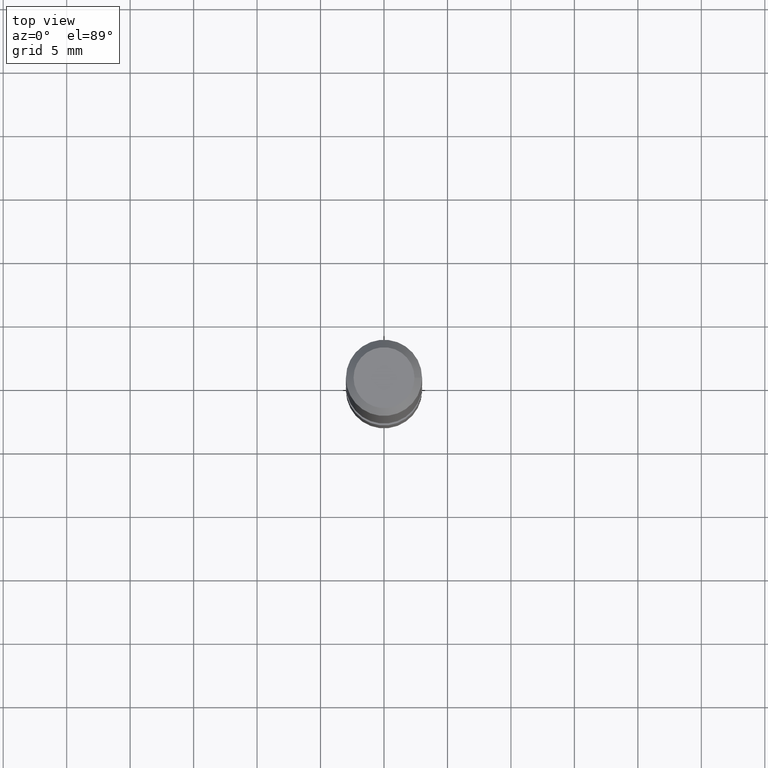
[diagram: clean part render]
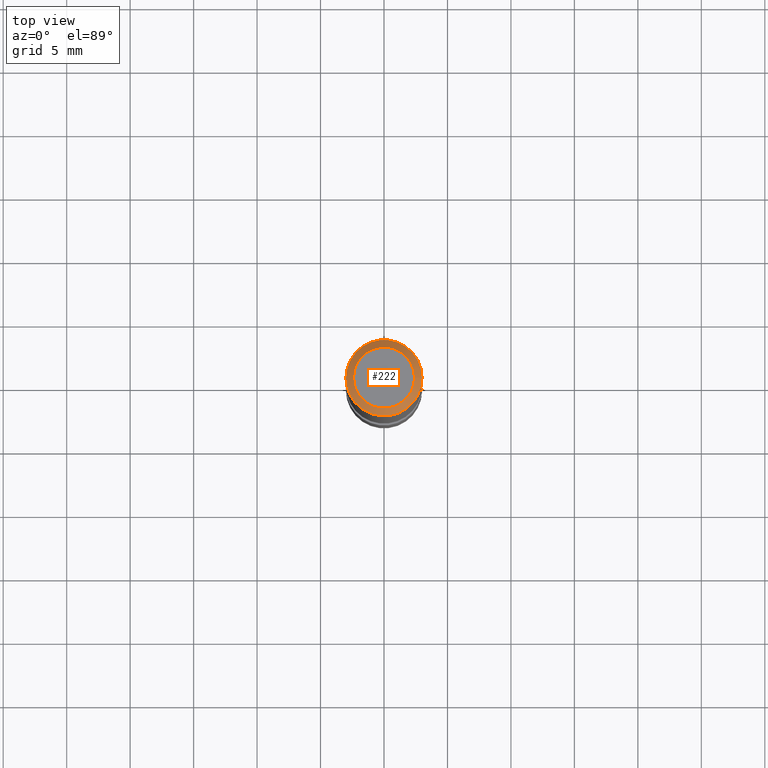
[diagram: same view with one face highlighted and labeled with its STEP entity id]
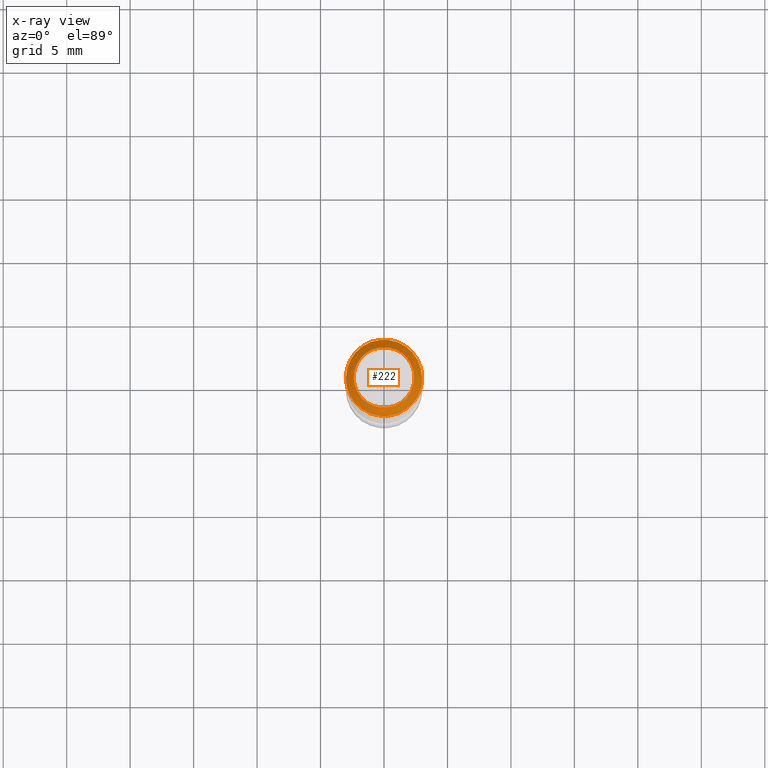
[diagram: x-ray of the same camera — body ghosted, the highlighted face saturated]
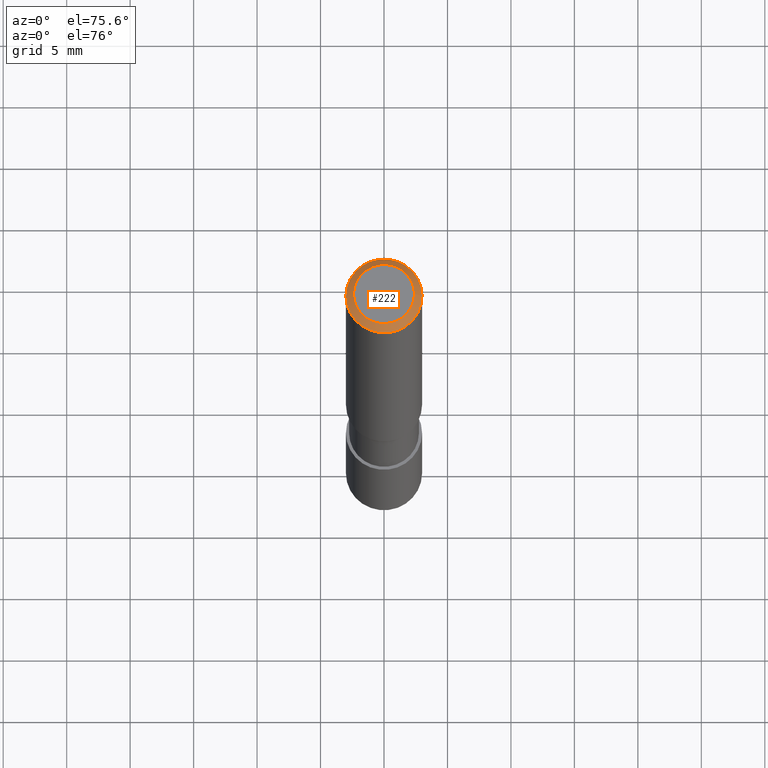
[diagram: same view with one face highlighted and labeled with its STEP entity id]
A machine part, top view. The second image highlights one B-rep face of the part: STEP entity #222.
The next image is the same camera in x-ray: the body ghosted, the highlighted face saturated — about 0% of this face is hidden behind the body in this view.
A second angle (auxiliary view) of the same face is appended — the face is thin or edge-on in the first view.
In plain terms, the highlighted conical surface has half-angle 45 deg.
Its self-contained STEP definition (entity closure, byte-faithful):
#10 = ORIENTED_EDGE ( 'NONE', *, *, #35, .T. ) ;
#21 = VERTEX_POINT ( 'NONE', #196 ) ;
#35 = EDGE_CURVE ( 'NONE', #87, #87, #50, .T. ) ;
#43 = FACE_BOUND ( 'NONE', #56, .T. ) ;
#50 = CIRCLE ( 'NONE', #129, 3.000000000000000000 ) ;
#52 = CARTESIAN_POINT ( 'NONE',  ( 2.999999999999995559, 0.0000000000000000000, -0.6000000000000241807 ) ) ;
#56 = EDGE_LOOP ( 'NONE', ( #66 ) ) ;
#66 = ORIENTED_EDGE ( 'NONE', *, *, #177, .F. ) ;
#70 = CIRCLE ( 'NONE', #264, 2.399999999999998135 ) ;
#75 = CARTESIAN_POINT ( 'NONE',  ( -4.189777606611783692E-15, 0.0000000000000000000, -0.6000000000000033085 ) ) ;
#78 = DIRECTION ( 'NONE',  ( 6.982962677686266711E-15, 0.0000000000000000000, 1.000000000000000000 ) ) ;
#87 = VERTEX_POINT ( 'NONE', #52 ) ;
#126 = FACE_OUTER_BOUND ( 'NONE', #137, .T. ) ;
#129 = AXIS2_PLACEMENT_3D ( 'NONE', #75, #232, #244 ) ;
#137 = EDGE_LOOP ( 'NONE', ( #10 ) ) ;
#153 = CONICAL_SURFACE ( 'NONE', #199, 2.399999999999998135, 0.7853981633974472798 ) ;
#176 = DIRECTION ( 'NONE',  ( -1.000000000000000000, 0.0000000000000000000, 6.982962677686266711E-15 ) ) ;
#177 = EDGE_CURVE ( 'NONE', #21, #21, #70, .T. ) ;
#185 = DIRECTION ( 'NONE',  ( 1.000000000000000000, 0.0000000000000000000, -6.982962677686266711E-15 ) ) ;
#196 = CARTESIAN_POINT ( 'NONE',  ( 2.399999999999998135, 0.0000000000000000000, -1.675911042644702748E-14 ) ) ;
#199 = AXIS2_PLACEMENT_3D ( 'NONE', #224, #279, #176 ) ;
#222 = ADVANCED_FACE ( 'NONE', ( #126, #43 ), #153, .T. ) ;
#224 = CARTESIAN_POINT ( 'NONE',  ( 0.0000000000000000000, 0.0000000000000000000, 0.0000000000000000000 ) ) ;
#232 = DIRECTION ( 'NONE',  ( 6.982962677686266711E-15, 0.0000000000000000000, 1.000000000000000000 ) ) ;
#244 = DIRECTION ( 'NONE',  ( 1.000000000000000000, 0.0000000000000000000, -6.975033976323412122E-15 ) ) ;
#252 = CARTESIAN_POINT ( 'NONE',  ( 0.0000000000000000000, 0.0000000000000000000, 0.0000000000000000000 ) ) ;
#264 = AXIS2_PLACEMENT_3D ( 'NONE', #252, #78, #185 ) ;
#279 = DIRECTION ( 'NONE',  ( -6.982962677686266711E-15, 0.0000000000000000000, -1.000000000000000000 ) ) ;